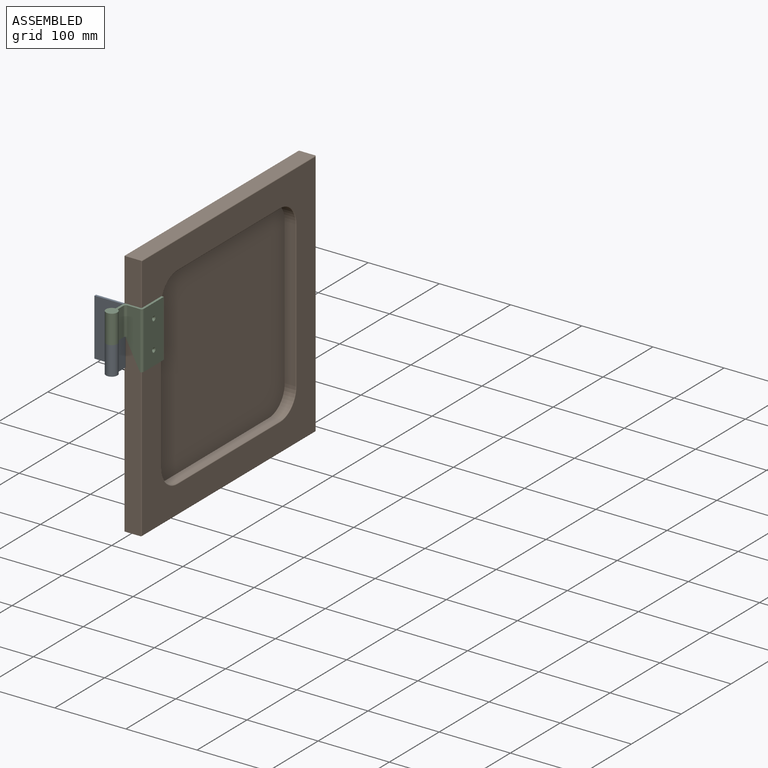
[diagram: assembled view]
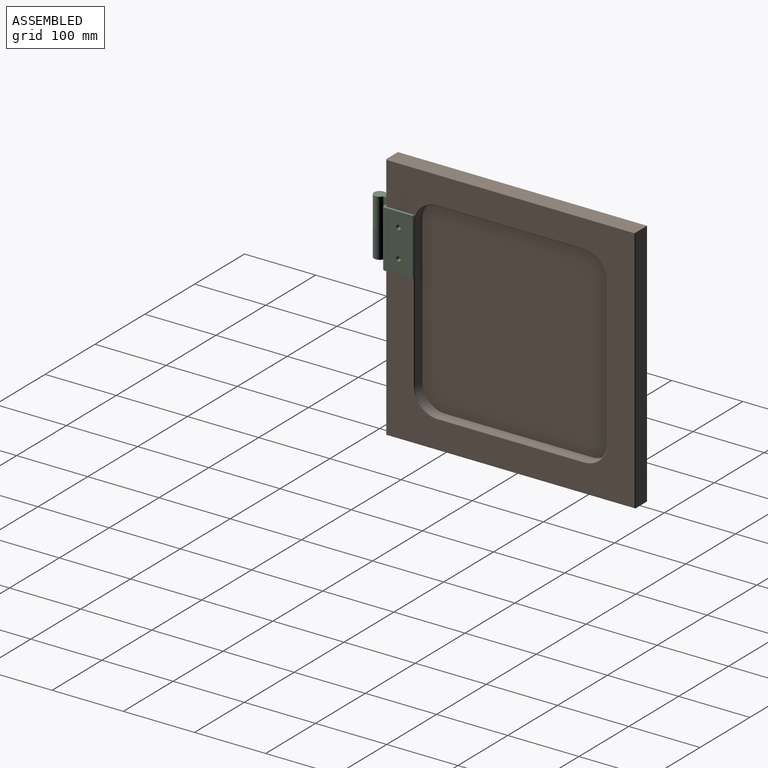
[diagram: assembled view, second angle]
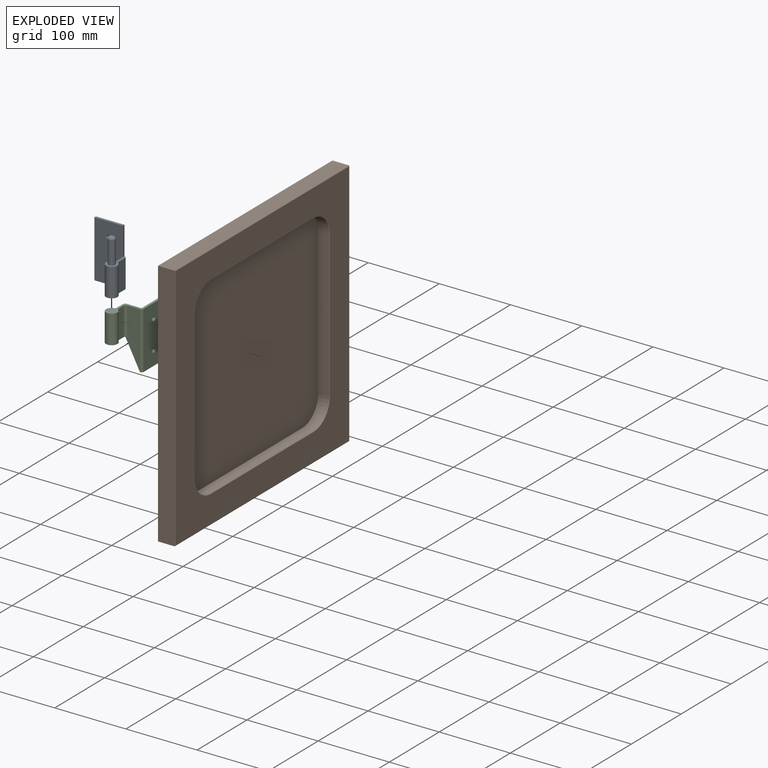
[diagram: exploded view]
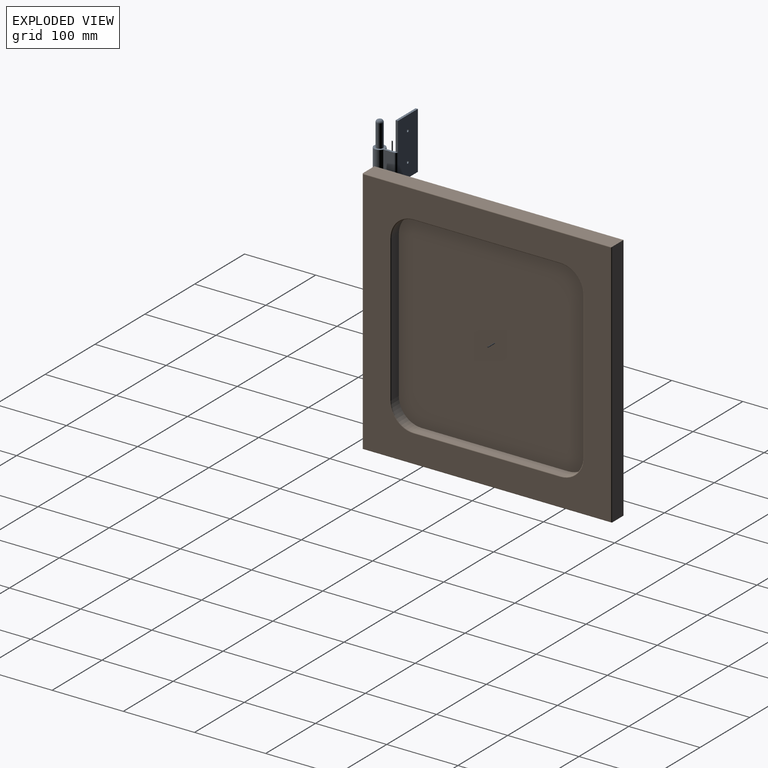
[diagram: exploded view, second angle]
ASSEMBLY  parts=3 mates=2
PART A: 19 faces, bbox 48x33.6x80 mm
  f0: plane 80x40mm, normal (0,-1,0), area 3005.6mm2, adj f2,f3,f4,f5,f6,f11,f16,f18
  f1: plane 80x40mm, normal (0,1,0), area 3180.8mm2, adj f2,f3,f4,f5,f10,f15,f17
  f2: plane 80x3.2mm, normal (-1,0,0), area 256mm2, adj f0,f1,f4,f5
  f3: plane 40x3.2mm, normal (1,0,0), area 128mm2, adj f0,f1,f4,f11
  f4: plane 40x3.2mm, normal (0,0,1), area 128mm2, adj f0,f1,f2,f3
  f5: plane 48x33.6mm, normal (0,0,-1), area 386.1mm2, adj f0,f1,f2,f6,f7,f8,f9,f10
  f6: cylinder r=3.2mm len=40mm, axis (0,0,-1), area 201.1mm2, adj f0,f5,f7,f11
  f7: plane 40x11.2mm, normal (-1,0,0), area 448mm2, adj f5,f6,f8,f11
  f8: cylinder r=8mm len=40mm, axis (0,0,-1), area 1878.9mm2, adj f5,f7,f9,f11
  f9: plane 40x15.07mm, normal (1,0,0), area 602.7mm2, adj f5,f8,f10,f11
  f10: cylinder r=3.2mm len=40mm, axis (0,0,-1), area 201.1mm2, adj f1,f5,f9,f11
  f11: plane 33.6x16mm, normal (0,0,1), area 187.2mm2, adj f0,f3,f6,f7,f8,f9,f10,f12
  f12: cylinder r=4.75mm len=32mm, axis (0,0,-1), area 955mm2, adj f11,f14
  f13: plane 3.1x3.1mm, normal (0,0,1), area 7.5mm2, adj f14
  f14: torus R=1.55mm, axis (0,0,1), area 113.3mm2, adj f12,f13
  f15: cylinder r=1.75mm len=3.5mm, axis (0,-1,0), area 18.7mm2, adj f1,f16
  f16: cone r=1.75mm half-angle=45deg, axis (0,-1,0), area 33.3mm2, adj f0,f15
  f17: cylinder r=1.75mm len=3.5mm, axis (0,-1,0), area 18.7mm2, adj f1,f18
  f18: cone r=1.75mm half-angle=45deg, axis (0,-1,0), area 33.3mm2, adj f0,f17
PART B: 32 faces, bbox 350x24x350 mm
  f0: plane 350x23mm, normal (0,0,1), area 8050mm2, adj f1,f11,f18,f20
  f1: plane 350x23mm, normal (-1,0,0), area 8050mm2, adj f0,f2,f18,f21
  f2: plane 350x23mm, normal (0,0,-1), area 8050mm2, adj f1,f11,f18,f23
  f3: cylinder r=32mm len=32mm, axis (0,1,0), area 754mm2, adj f4,f10,f13,f30
  f4: plane 206x15mm, normal (-1,0,0), area 3090mm2, adj f3,f5,f13,f28
  f5: cylinder r=32mm len=32mm, axis (0,1,0), area 754mm2, adj f4,f6,f13,f26
  f6: plane 206x15mm, normal (0,0,1), area 3090mm2, adj f5,f7,f13,f24
  f7: cylinder r=32mm len=32mm, axis (0,1,0), area 754mm2, adj f6,f8,f13,f25
  f8: plane 206x15mm, normal (1,0,0), area 3090mm2, adj f7,f9,f13,f27
  f9: cylinder r=32mm len=32mm, axis (0,1,0), area 754mm2, adj f8,f10,f13,f29
  f10: plane 206x15mm, normal (0,0,-1), area 3090mm2, adj f3,f9,f13,f31
  f11: plane 350x23mm, normal (1,0,0), area 8050mm2, adj f0,f2,f18,f22
  f12: plane 348x348mm, normal (0,-1,0), area 48054.8mm2, adj f20,f21,f22,f23,f24,f25,f26,f27
  f13: plane 270x270mm, normal (0,-1,0), area 72021mm2, adj f3,f4,f5,f6,f7,f8,f9,f10
  f14: plane 318x5mm, normal (0,0,1), area 1590mm2, adj f15,f17,f18,f19
  f15: plane 318x5mm, normal (-1,0,0), area 1590mm2, adj f14,f16,f18,f19
  f16: plane 318x5mm, normal (0,0,-1), area 1590mm2, adj f15,f17,f18,f19
  f17: plane 318x5mm, normal (1,0,0), area 1590mm2, adj f14,f16,f18,f19
  f18: plane 350x350mm, normal (0,1,0), area 21376mm2, adj f0,f1,f2,f11,f14,f15,f16,f17
  f19: plane 318x318mm, normal (0,1,0), area 101124mm2, adj f14,f15,f16,f17
  f20: cylinder r=1mm len=350mm, axis (1,0,0), area 548.6mm2, adj f0,f12,f21,f22
  f21: cylinder r=1mm len=350mm, axis (0,0,1), area 548.6mm2, adj f1,f12,f20,f23
  f22: cylinder r=1mm len=350mm, axis (0,0,-1), area 548.6mm2, adj f11,f12,f20,f23
  f23: cylinder r=1mm len=350mm, axis (-1,0,0), area 548.6mm2, adj f2,f12,f21,f22
  f24: cylinder r=1mm len=206mm, axis (1,0,0), area 323.6mm2, adj f6,f12,f25,f26
  f25: torus R=33mm, axis (0,-1,0), area 79.9mm2, adj f7,f12,f24,f27
  f26: torus R=33mm, axis (0,-1,0), area 79.9mm2, adj f5,f12,f24,f28
  f27: cylinder r=1mm len=206mm, axis (0,0,-1), area 323.6mm2, adj f8,f12,f25,f29
  f28: cylinder r=1mm len=206mm, axis (0,0,1), area 323.6mm2, adj f4,f12,f26,f30
  f29: torus R=33mm, axis (0,-1,0), area 79.9mm2, adj f9,f12,f27,f31
  f30: torus R=33mm, axis (0,-1,0), area 79.9mm2, adj f3,f12,f28,f31
  f31: cylinder r=1mm len=206mm, axis (-1,0,0), area 323.6mm2, adj f10,f12,f29,f30
PART C: 23 faces, bbox 35.4x73.8x80 mm
  f0: plane 33.6x16mm, normal (0,0,-1), area 127.4mm2, adj f9,f10,f11,f12,f13,f14,f16,f22
  f1: cylinder r=4.85mm len=35.2mm, axis (0,0,-1), area 1072.7mm2, adj f15,f22
  f2: plane 80x39mm, normal (-1,0,0), area 3100.8mm2, adj f5,f6,f7,f17,f19,f21
  f3: cylinder r=3.2mm len=80mm, axis (0,0,-1), area 402.1mm2, adj f4,f6,f7,f14
  f4: plane 80x40mm, normal (1,0,0), area 3133.6mm2, adj f3,f5,f6,f7,f18,f20
  f5: plane 80x3.2mm, normal (0,1,0), area 256mm2, adj f2,f4,f6,f7
  f6: plane 73.6x35.2mm, normal (0,0,1), area 460.9mm2, adj f2,f3,f4,f5,f8,f9,f10,f11
  f7: plane 43.2x3.2mm, normal (0,0,-1), area 136mm2, adj f2,f3,f4,f5,f16
  f8: plane 78.08x19.8mm, normal (0,1,0), area 1169mm2, adj f6,f9,f16,f21
  f9: cylinder r=3.2mm len=40mm, axis (0,0,-1), area 201.1mm2, adj f0,f6,f8,f10
  f10: plane 40x14.4mm, normal (-1,0,0), area 576mm2, adj f0,f6,f9,f11
  f11: cylinder r=8mm len=40mm, axis (0,0,-1), area 1878.9mm2, adj f0,f6,f10,f12
  f12: plane 40x11.87mm, normal (1,0,0), area 474.7mm2, adj f0,f6,f11,f13
  f13: cylinder r=3.2mm len=40mm, axis (0,0,-1), area 201.1mm2, adj f0,f6,f12,f14
  f14: plane 80x20.8mm, normal (0,-1,0), area 1120mm2, adj f0,f3,f6,f13,f16
  f15: plane 9.7x9.7mm, normal (0,0,-1), area 73.9mm2, adj f1
  f16: plane 40x20.8mm, normal (-0.89,0,-0.46), area 144.7mm2, adj f0,f7,f8,f14,f21
  f17: cylinder r=1.75mm len=3.5mm, axis (1,0,0), area 18.7mm2, adj f2,f18
  f18: cone r=1.75mm half-angle=45deg, axis (1,0,0), area 33.3mm2, adj f4,f17
  f19: cylinder r=1.75mm len=3.5mm, axis (1,0,0), area 18.7mm2, adj f2,f20
  f20: cone r=1.75mm half-angle=45deg, axis (1,0,0), area 33.3mm2, adj f4,f19
  f21: cylinder r=1mm len=80mm, axis (0,0,1), area 124.6mm2, adj f2,f6,f8,f16
  f22: torus R=6.45mm, axis (0,0,1), area 85.8mm2, adj f0,f1
PLACE A at identity fixed
PLACE B rot(axis=(0,0,1),90deg) t=(8,193.29,-21.86)mm
PLACE C t=(-25.6,0,0)mm
MATE fastened C.f18 <-> B.f12  axis (1,0,0) through (24,45.6,60)mm
MATE revolute A.f8 <-> C.f1  axis (0,0,1) through (0,0,40)mm
